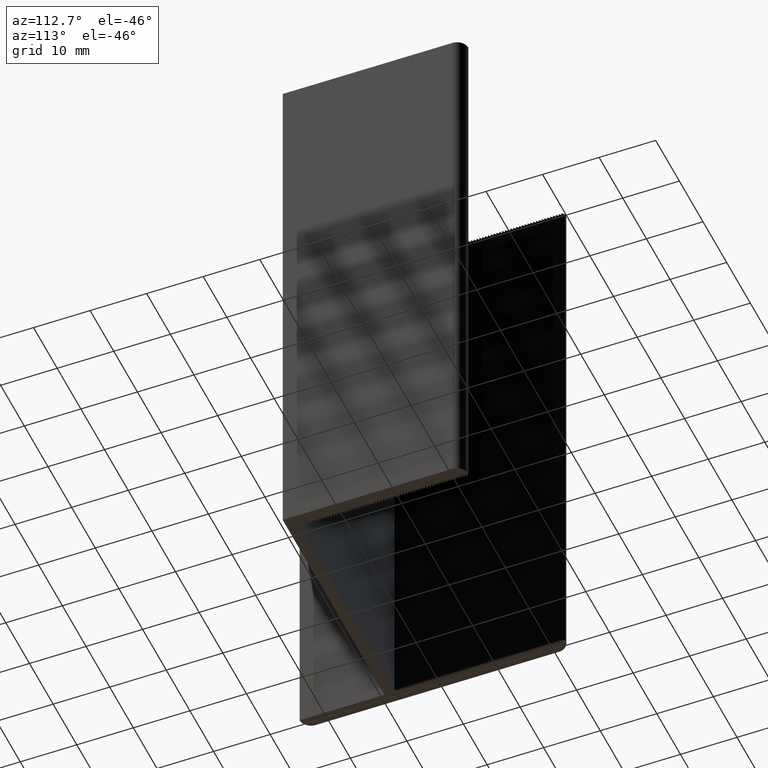
[diagram: clean part render]
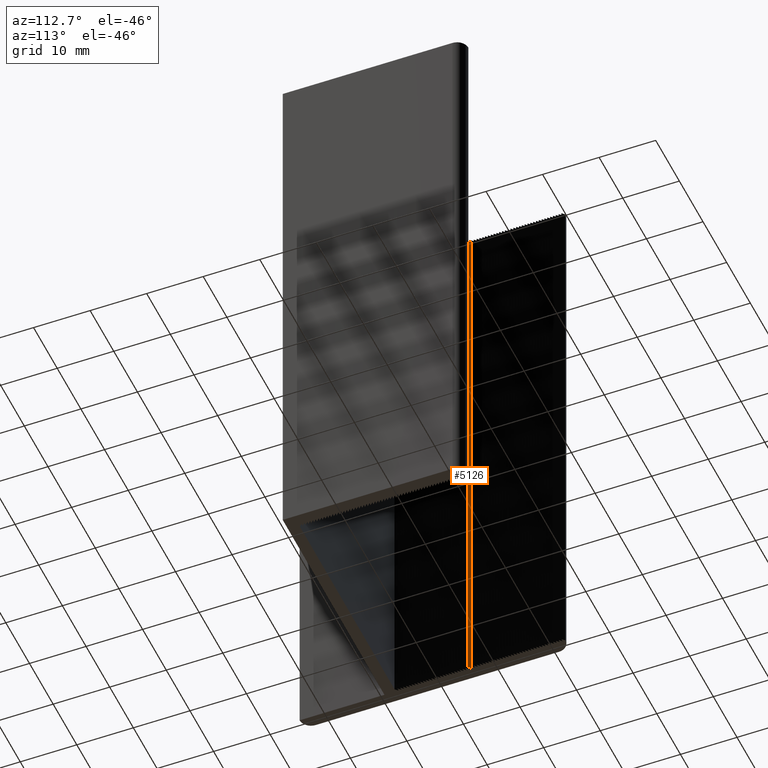
[diagram: same view with one face highlighted and labeled with its STEP entity id]
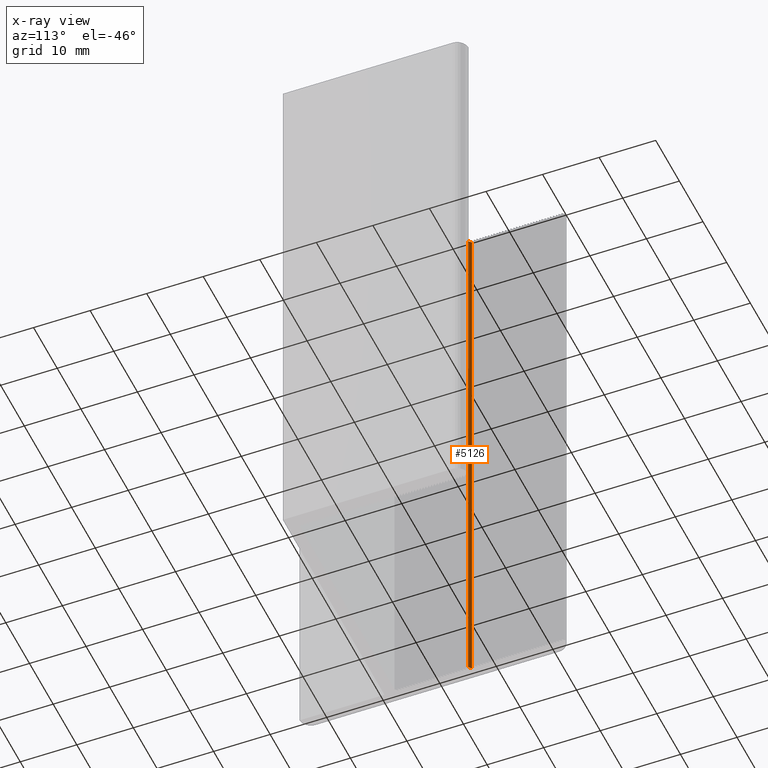
[diagram: x-ray of the same camera — body ghosted, the highlighted face saturated]
A machine part, auxiliary view. The second image highlights one B-rep face of the part: STEP entity #5126.
The next image is the same camera in x-ray: the body ghosted, the highlighted face saturated — about 7% of this face is hidden behind the body in this view.
In plain terms, the highlighted planar face has unit normal (0.7071, 0.7071, 0).
Its self-contained STEP definition (entity closure, byte-faithful):
#215=FACE_OUTER_BOUND('',#463,.T.);
#463=EDGE_LOOP('',(#3978,#3979,#3980,#3981));
#1087=LINE('',#7830,#1819);
#1088=LINE('',#7833,#1820);
#1089=LINE('',#7835,#1821);
#1090=LINE('',#7836,#1822);
#1819=VECTOR('',#6402,100.);
#1820=VECTOR('',#6405,0.707106781186545);
#1821=VECTOR('',#6406,0.707106781186545);
#1822=VECTOR('',#6407,100.);
#2366=VERTEX_POINT('',#7826);
#2367=VERTEX_POINT('',#7828);
#2368=VERTEX_POINT('',#7832);
#2369=VERTEX_POINT('',#7834);
#3049=EDGE_CURVE('',#2366,#2367,#1087,.T.);
#3050=EDGE_CURVE('',#2366,#2368,#1088,.T.);
#3051=EDGE_CURVE('',#2369,#2367,#1089,.T.);
#3052=EDGE_CURVE('',#2368,#2369,#1090,.T.);
#3978=ORIENTED_EDGE('',*,*,#3050,.F.);
#3979=ORIENTED_EDGE('',*,*,#3049,.T.);
#3980=ORIENTED_EDGE('',*,*,#3051,.F.);
#3981=ORIENTED_EDGE('',*,*,#3052,.F.);
#4878=PLANE('',#5382);
#5126=ADVANCED_FACE('',(#215),#4878,.T.);
#5382=AXIS2_PLACEMENT_3D('',#7831,#6403,#6404);
#6402=DIRECTION('',(0.,0.,1.));
#6403=DIRECTION('center_axis',(0.707106781186548,0.707106781186548,0.));
#6404=DIRECTION('ref_axis',(-0.707106781186548,0.707106781186548,0.));
#6405=DIRECTION('',(0.707106781186547,-0.707106781186547,0.));
#6406=DIRECTION('',(-0.707106781186547,0.707106781186547,0.));
#6407=DIRECTION('',(0.,0.,1.));
#7826=CARTESIAN_POINT('',(-20.5,15.5,0.));
#7828=CARTESIAN_POINT('',(-20.5,15.5,100.));
#7830=CARTESIAN_POINT('',(-20.5,15.5,0.));
#7831=CARTESIAN_POINT('Origin',(-20.,15.,0.));
#7832=CARTESIAN_POINT('',(-20.,15.,0.));
#7833=CARTESIAN_POINT('',(-20.5,15.5,0.));
#7834=CARTESIAN_POINT('',(-20.,15.,100.));
#7835=CARTESIAN_POINT('',(-20.5,15.5,100.));
#7836=CARTESIAN_POINT('',(-20.,15.,0.));